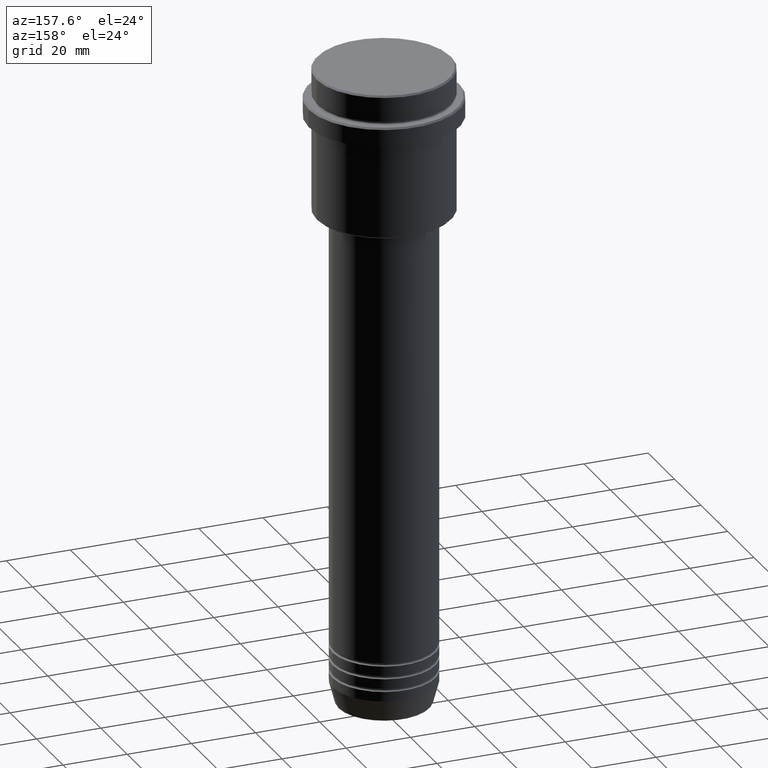
[diagram: clean part render]
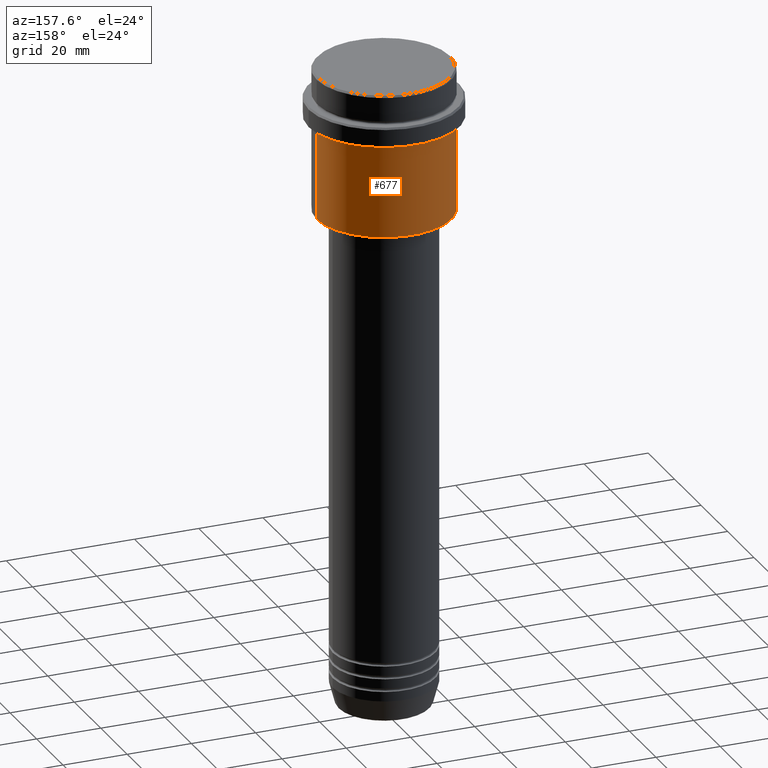
[diagram: same view with one face highlighted and labeled with its STEP entity id]
A machine part, auxiliary view. The second image highlights one B-rep face of the part: STEP entity #677.
In plain terms, the highlighted cylindrical surface (partial cylindrical patch) has radius 21 mm, axis along (-0, -0, 1).
Its self-contained STEP definition (entity closure, byte-faithful):
#15 = CARTESIAN_POINT ( 'NONE',  ( 0.000000000000000000, 0.000000000000000000, -16.00000000000000355 ) ) ;
#19 = EDGE_CURVE ( 'NONE', #1292, #217, #695, .T. ) ;
#75 = DIRECTION ( 'NONE',  ( 1.000000000000000000, 0.000000000000000000, 0.000000000000000000 ) ) ;
#89 = ORIENTED_EDGE ( 'NONE', *, *, #904, .T. ) ;
#116 = DIRECTION ( 'NONE',  ( -0.000000000000000000, -0.000000000000000000, 1.000000000000000000 ) ) ;
#124 = AXIS2_PLACEMENT_3D ( 'NONE', #15, #1128, #895 ) ;
#154 = VECTOR ( 'NONE', #116, 1000.000000000000000 ) ;
#170 = DIRECTION ( 'NONE',  ( -1.000000000000000000, 0.000000000000000000, 0.000000000000000000 ) ) ;
#171 = DIRECTION ( 'NONE',  ( -0.000000000000000000, -0.000000000000000000, 1.000000000000000000 ) ) ;
#217 = VERTEX_POINT ( 'NONE', #784 ) ;
#271 = FACE_OUTER_BOUND ( 'NONE', #527, .T. ) ;
#305 = AXIS2_PLACEMENT_3D ( 'NONE', #716, #914, #170 ) ;
#360 = VERTEX_POINT ( 'NONE', #1046 ) ;
#408 = DIRECTION ( 'NONE',  ( -0.000000000000000000, -0.000000000000000000, 1.000000000000000000 ) ) ;
#440 = CIRCLE ( 'NONE', #305, 21.00000000000000000 ) ;
#458 = ORIENTED_EDGE ( 'NONE', *, *, #802, .F. ) ;
#461 = VERTEX_POINT ( 'NONE', #1371 ) ;
#477 = EDGE_CURVE ( 'NONE', #360, #461, #440, .T. ) ;
#525 = CARTESIAN_POINT ( 'NONE',  ( 21.00000000000000000, 0.000000000000000000, -16.00000000000000355 ) ) ;
#527 = EDGE_LOOP ( 'NONE', ( #1118, #89, #655, #458 ) ) ;
#592 = CARTESIAN_POINT ( 'NONE',  ( 21.00000000000000000, 0.000000000000000000, 0.000000000000000000 ) ) ;
#595 = CARTESIAN_POINT ( 'NONE',  ( 0.000000000000000000, 0.000000000000000000, 0.000000000000000000 ) ) ;
#655 = ORIENTED_EDGE ( 'NONE', *, *, #19, .F. ) ;
#677 = ADVANCED_FACE ( 'NONE', ( #271 ), #1144, .T. ) ;
#695 = CIRCLE ( 'NONE', #124, 21.00000000000000000 ) ;
#697 = AXIS2_PLACEMENT_3D ( 'NONE', #595, #171, #75 ) ;
#716 = CARTESIAN_POINT ( 'NONE',  ( 0.000000000000000000, 0.000000000000000000, -44.49999999999998579 ) ) ;
#753 = CARTESIAN_POINT ( 'NONE',  ( -21.00000000000000000, 2.571758278209441661E-15, 0.000000000000000000 ) ) ;
#784 = CARTESIAN_POINT ( 'NONE',  ( -21.00000000000000000, 2.571758278209441661E-15, -16.00000000000000355 ) ) ;
#802 = EDGE_CURVE ( 'NONE', #360, #1292, #1230, .T. ) ;
#895 = DIRECTION ( 'NONE',  ( 1.000000000000000000, 0.000000000000000000, 0.000000000000000000 ) ) ;
#904 = EDGE_CURVE ( 'NONE', #461, #217, #1318, .T. ) ;
#914 = DIRECTION ( 'NONE',  ( -0.000000000000000000, -0.000000000000000000, 1.000000000000000000 ) ) ;
#1038 = VECTOR ( 'NONE', #408, 1000.000000000000000 ) ;
#1046 = CARTESIAN_POINT ( 'NONE',  ( 21.00000000000000000, 0.000000000000000000, -44.49999999999998579 ) ) ;
#1118 = ORIENTED_EDGE ( 'NONE', *, *, #477, .T. ) ;
#1128 = DIRECTION ( 'NONE',  ( -0.000000000000000000, -0.000000000000000000, 1.000000000000000000 ) ) ;
#1144 = CYLINDRICAL_SURFACE ( 'NONE', #697, 21.00000000000000000 ) ;
#1230 = LINE ( 'NONE', #592, #1038 ) ;
#1292 = VERTEX_POINT ( 'NONE', #525 ) ;
#1318 = LINE ( 'NONE', #753, #154 ) ;
#1371 = CARTESIAN_POINT ( 'NONE',  ( -21.00000000000000000, 2.571758278209441661E-15, -44.49999999999998579 ) ) ;